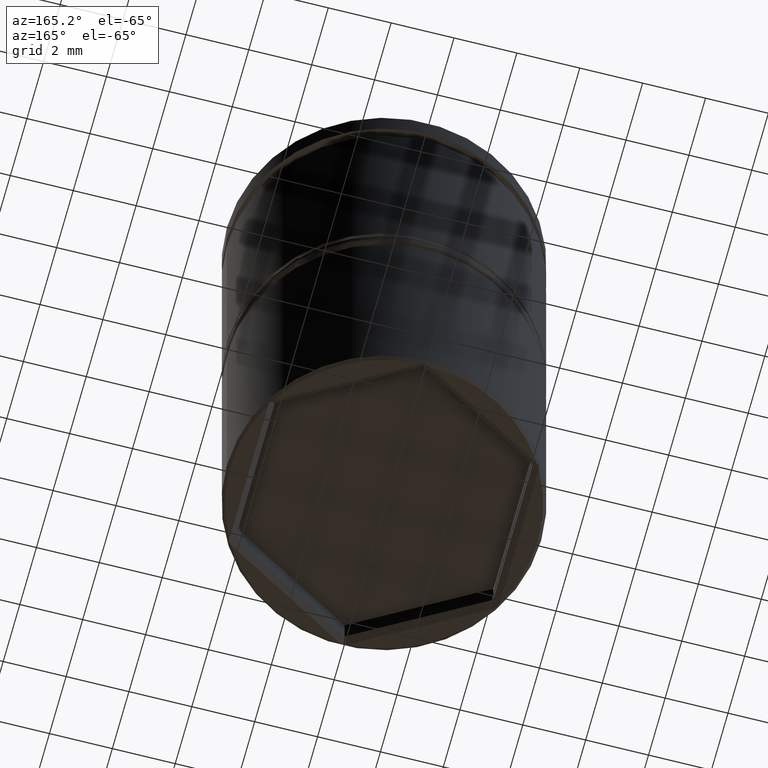
[diagram: clean part render]
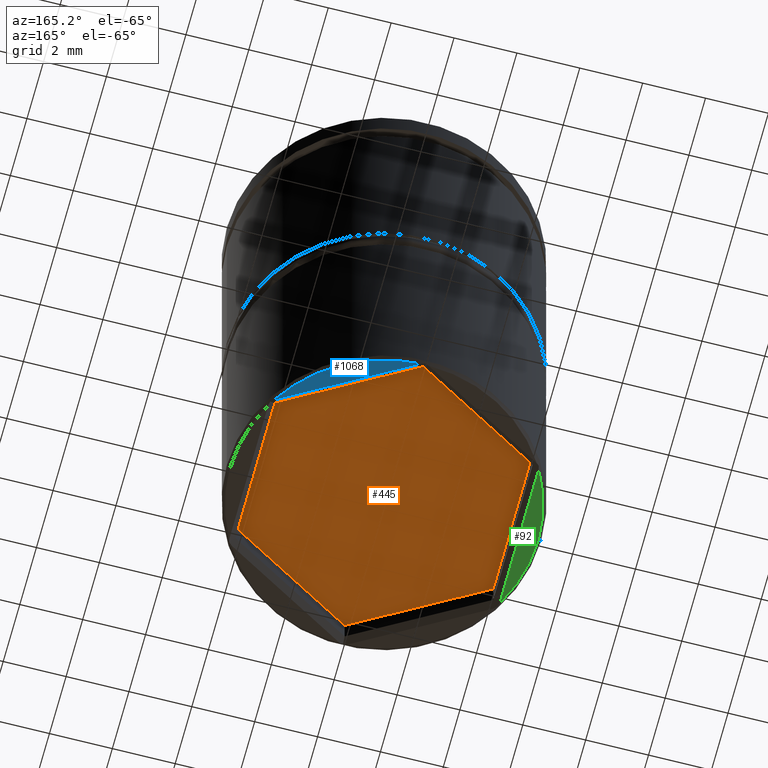
[diagram: same view with three faces highlighted in distinct colors, each labeled with its STEP entity id]
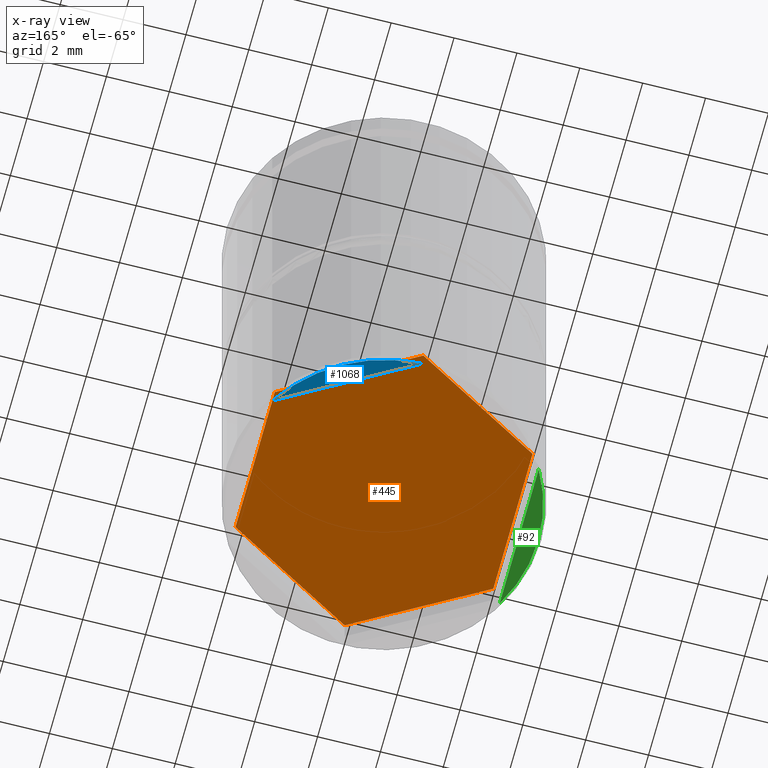
[diagram: x-ray of the same camera — body ghosted, the three highlighted faces saturated]
A machine part, auxiliary view with three faces highlighted in distinct colors.
The next image is the same camera in x-ray (body ghosted, the three faces saturated) — at least one of them is partly hidden behind the body in this view.
Their STEP definitions:

[orange] entity #445 — the highlighted planar face has unit normal (0, 0, -1).
#34 = EDGE_CURVE ( 'NONE', #372, #1078, #91, .T. ) ;
#55 = CARTESIAN_POINT ( 'NONE',  ( 0.000000000000000000, 4.734272207354920603, -16.50000000000000000 ) ) ;
#71 = CARTESIAN_POINT ( 'NONE',  ( 4.099999999999990763, 2.367136103677458969, -16.50000000000000000 ) ) ;
#91 = LINE ( 'NONE', #106, #1164 ) ;
#106 = CARTESIAN_POINT ( 'NONE',  ( -4.099999999999990763, -2.367136103677459857, -16.50000000000000000 ) ) ;
#109 = EDGE_CURVE ( 'NONE', #278, #692, #609, .T. ) ;
#138 = VECTOR ( 'NONE', #332, 1000.000000000000000 ) ;
#201 = ORIENTED_EDGE ( 'NONE', *, *, #34, .T. ) ;
#221 = DIRECTION ( 'NONE',  ( 0.000000000000000000, 0.000000000000000000, -1.000000000000000000 ) ) ;
#278 = VERTEX_POINT ( 'NONE', #55 ) ;
#287 = DIRECTION ( 'NONE',  ( 0.000000000000000000, 1.000000000000000000, 0.000000000000000000 ) ) ;
#302 = DIRECTION ( 'NONE',  ( -0.8660254037844387076, -0.4999999999999999445, 0.000000000000000000 ) ) ;
#332 = DIRECTION ( 'NONE',  ( -0.8660254037844385966, 0.5000000000000001110, 0.000000000000000000 ) ) ;
#337 = ORIENTED_EDGE ( 'NONE', *, *, #474, .T. ) ;
#341 = EDGE_LOOP ( 'NONE', ( #656, #1090, #1163, #838, #337, #201 ) ) ;
#346 = CARTESIAN_POINT ( 'NONE',  ( 4.099999999999990763, -2.367136103677460301, -16.50000000000000000 ) ) ;
#359 = AXIS2_PLACEMENT_3D ( 'NONE', #1196, #221, #869 ) ;
#372 = VERTEX_POINT ( 'NONE', #1267 ) ;
#409 = CARTESIAN_POINT ( 'NONE',  ( 4.099999999999990763, -2.367136103677460301, -16.50000000000000000 ) ) ;
#431 = VECTOR ( 'NONE', #1281, 1000.000000000000000 ) ;
#439 = LINE ( 'NONE', #978, #138 ) ;
#445 = ADVANCED_FACE ( 'NONE', ( #771 ), #1181, .T. ) ;
#474 = EDGE_CURVE ( 'NONE', #1226, #372, #439, .T. ) ;
#522 = VECTOR ( 'NONE', #1269, 1000.000000000000114 ) ;
#609 = LINE ( 'NONE', #1039, #1011 ) ;
#619 = DIRECTION ( 'NONE',  ( 0.8660254037844384856, -0.5000000000000002220, 0.000000000000000000 ) ) ;
#656 = ORIENTED_EDGE ( 'NONE', *, *, #822, .T. ) ;
#692 = VERTEX_POINT ( 'NONE', #1076 ) ;
#732 = LINE ( 'NONE', #1157, #522 ) ;
#771 = FACE_OUTER_BOUND ( 'NONE', #341, .T. ) ;
#815 = EDGE_CURVE ( 'NONE', #1359, #1226, #943, .T. ) ;
#822 = EDGE_CURVE ( 'NONE', #1078, #278, #732, .T. ) ;
#838 = ORIENTED_EDGE ( 'NONE', *, *, #815, .T. ) ;
#869 = DIRECTION ( 'NONE',  ( -1.000000000000000000, 0.000000000000000000, -0.000000000000000000 ) ) ;
#927 = CARTESIAN_POINT ( 'NONE',  ( -8.646952822150503169E-16, -4.734272207354920603, -16.50000000000000000 ) ) ;
#943 = LINE ( 'NONE', #409, #1235 ) ;
#978 = CARTESIAN_POINT ( 'NONE',  ( -8.646952822150503169E-16, -4.734272207354920603, -16.50000000000000000 ) ) ;
#1011 = VECTOR ( 'NONE', #619, 1000.000000000000227 ) ;
#1019 = LINE ( 'NONE', #71, #431 ) ;
#1039 = CARTESIAN_POINT ( 'NONE',  ( 0.000000000000000000, 4.734272207354920603, -16.50000000000000000 ) ) ;
#1042 = CARTESIAN_POINT ( 'NONE',  ( -4.099999999999990763, 2.367136103677462078, -16.50000000000000000 ) ) ;
#1076 = CARTESIAN_POINT ( 'NONE',  ( 4.099999999999990763, 2.367136103677458969, -16.50000000000000000 ) ) ;
#1078 = VERTEX_POINT ( 'NONE', #1042 ) ;
#1090 = ORIENTED_EDGE ( 'NONE', *, *, #109, .T. ) ;
#1157 = CARTESIAN_POINT ( 'NONE',  ( -4.099999999999990763, 2.367136103677462078, -16.50000000000000000 ) ) ;
#1163 = ORIENTED_EDGE ( 'NONE', *, *, #1303, .T. ) ;
#1164 = VECTOR ( 'NONE', #287, 1000.000000000000000 ) ;
#1181 = PLANE ( 'NONE',  #359 ) ;
#1196 = CARTESIAN_POINT ( 'NONE',  ( 0.000000000000000000, 0.000000000000000000, -16.50000000000000000 ) ) ;
#1226 = VERTEX_POINT ( 'NONE', #927 ) ;
#1235 = VECTOR ( 'NONE', #302, 1000.000000000000000 ) ;
#1267 = CARTESIAN_POINT ( 'NONE',  ( -4.099999999999990763, -2.367136103677459857, -16.50000000000000000 ) ) ;
#1269 = DIRECTION ( 'NONE',  ( 0.8660254037844388186, 0.4999999999999997780, 0.000000000000000000 ) ) ;
#1281 = DIRECTION ( 'NONE',  ( 0.000000000000000000, -1.000000000000000000, 0.000000000000000000 ) ) ;
#1303 = EDGE_CURVE ( 'NONE', #692, #1359, #1019, .T. ) ;
#1359 = VERTEX_POINT ( 'NONE', #346 ) ;

[blue] entity #1068 — the highlighted planar face has unit normal (0, 0, -1).
#40 = DIRECTION ( 'NONE',  ( -0.8660254037844385966, 0.5000000000000002220, 0.000000000000000000 ) ) ;
#152 = ORIENTED_EDGE ( 'NONE', *, *, #238, .T. ) ;
#182 = AXIS2_PLACEMENT_3D ( 'NONE', #1087, #876, #340 ) ;
#238 = EDGE_CURVE ( 'NONE', #840, #1378, #1002, .T. ) ;
#307 = ORIENTED_EDGE ( 'NONE', *, *, #438, .T. ) ;
#340 = DIRECTION ( 'NONE',  ( -1.000000000000000000, 0.000000000000000000, 0.000000000000000000 ) ) ;
#438 = EDGE_CURVE ( 'NONE', #1378, #840, #924, .T. ) ;
#550 = CARTESIAN_POINT ( 'NONE',  ( 0.1153010050624291294, 4.898643248720151000, -17.50000000000000000 ) ) ;
#690 = CARTESIAN_POINT ( 'NONE',  ( 0.000000000000000000, 5.000000000000000000, -17.50000000000000000 ) ) ;
#797 = EDGE_LOOP ( 'NONE', ( #307, #152 ) ) ;
#840 = VERTEX_POINT ( 'NONE', #1102 ) ;
#876 = DIRECTION ( 'NONE',  ( 0.000000000000000000, 0.000000000000000000, -1.000000000000000000 ) ) ;
#924 = CIRCLE ( 'NONE', #182, 4.899999999999991473 ) ;
#928 = DIRECTION ( 'NONE',  ( -1.000000000000000000, 0.000000000000000000, -0.000000000000000000 ) ) ;
#1002 = LINE ( 'NONE', #1130, #1367 ) ;
#1026 = DIRECTION ( 'NONE',  ( 0.000000000000000000, 0.000000000000000000, -1.000000000000000000 ) ) ;
#1068 = ADVANCED_FACE ( 'NONE', ( #1323 ), #1249, .T. ) ;
#1087 = CARTESIAN_POINT ( 'NONE',  ( 0.000000000000000000, 0.000000000000000000, -17.50000000000000000 ) ) ;
#1102 = CARTESIAN_POINT ( 'NONE',  ( 4.184698994937568806, 2.549175223826016357, -17.50000000000000000 ) ) ;
#1130 = CARTESIAN_POINT ( 'NONE',  ( 0.1000000000000026146, 4.907477288111813607, -17.50000000000000000 ) ) ;
#1249 = PLANE ( 'NONE',  #1374 ) ;
#1323 = FACE_OUTER_BOUND ( 'NONE', #797, .T. ) ;
#1367 = VECTOR ( 'NONE', #40, 999.9999999999998863 ) ;
#1374 = AXIS2_PLACEMENT_3D ( 'NONE', #690, #1026, #928 ) ;
#1378 = VERTEX_POINT ( 'NONE', #550 ) ;

[green] entity #92 — the highlighted planar face has unit normal (0, 0, -1).
#3 = CARTESIAN_POINT ( 'NONE',  ( 0.000000000000000000, 0.000000000000000000, -17.50000000000000000 ) ) ;
#48 = AXIS2_PLACEMENT_3D ( 'NONE', #1372, #1158, #1165 ) ;
#64 = EDGE_CURVE ( 'NONE', #395, #189, #719, .T. ) ;
#92 = ADVANCED_FACE ( 'NONE', ( #412 ), #280, .T. ) ;
#119 = VECTOR ( 'NONE', #274, 1000.000000000000000 ) ;
#141 = EDGE_CURVE ( 'NONE', #189, #188, #678, .T. ) ;
#146 = EDGE_CURVE ( 'NONE', #188, #395, #1277, .T. ) ;
#177 = CARTESIAN_POINT ( 'NONE',  ( 0.000000000000000000, 0.000000000000000000, -17.50000000000000000 ) ) ;
#188 = VERTEX_POINT ( 'NONE', #788 ) ;
#189 = VERTEX_POINT ( 'NONE', #1313 ) ;
#198 = DIRECTION ( 'NONE',  ( -1.000000000000000000, 0.000000000000000000, 0.000000000000000000 ) ) ;
#209 = CARTESIAN_POINT ( 'NONE',  ( -4.299999999999996270, -2.349468024894134199, -17.50000000000000000 ) ) ;
#274 = DIRECTION ( 'NONE',  ( 0.000000000000000000, -1.000000000000000000, 0.000000000000000000 ) ) ;
#280 = PLANE ( 'NONE',  #48 ) ;
#352 = CARTESIAN_POINT ( 'NONE',  ( -4.299999999999996270, -2.367136103677459857, -17.50000000000000000 ) ) ;
#395 = VERTEX_POINT ( 'NONE', #209 ) ;
#405 = AXIS2_PLACEMENT_3D ( 'NONE', #3, #427, #853 ) ;
#412 = FACE_OUTER_BOUND ( 'NONE', #941, .T. ) ;
#427 = DIRECTION ( 'NONE',  ( 0.000000000000000000, 0.000000000000000000, -1.000000000000000000 ) ) ;
#498 = AXIS2_PLACEMENT_3D ( 'NONE', #177, #1245, #198 ) ;
#614 = ORIENTED_EDGE ( 'NONE', *, *, #146, .T. ) ;
#678 = CIRCLE ( 'NONE', #405, 4.899999999999991473 ) ;
#719 = CIRCLE ( 'NONE', #498, 4.899999999999991473 ) ;
#756 = ORIENTED_EDGE ( 'NONE', *, *, #64, .T. ) ;
#788 = CARTESIAN_POINT ( 'NONE',  ( -4.299999999999996270, 2.349468024894134199, -17.50000000000000000 ) ) ;
#853 = DIRECTION ( 'NONE',  ( -1.000000000000000000, 0.000000000000000000, 0.000000000000000000 ) ) ;
#941 = EDGE_LOOP ( 'NONE', ( #756, #1253, #614 ) ) ;
#1158 = DIRECTION ( 'NONE',  ( 0.000000000000000000, 0.000000000000000000, -1.000000000000000000 ) ) ;
#1165 = DIRECTION ( 'NONE',  ( -1.000000000000000000, 0.000000000000000000, -0.000000000000000000 ) ) ;
#1245 = DIRECTION ( 'NONE',  ( 0.000000000000000000, 0.000000000000000000, -1.000000000000000000 ) ) ;
#1253 = ORIENTED_EDGE ( 'NONE', *, *, #141, .T. ) ;
#1277 = LINE ( 'NONE', #352, #119 ) ;
#1313 = CARTESIAN_POINT ( 'NONE',  ( -4.899999999999991473, 6.062001655779392595E-16, -17.50000000000000000 ) ) ;
#1372 = CARTESIAN_POINT ( 'NONE',  ( 0.000000000000000000, 5.000000000000000000, -17.50000000000000000 ) ) ;